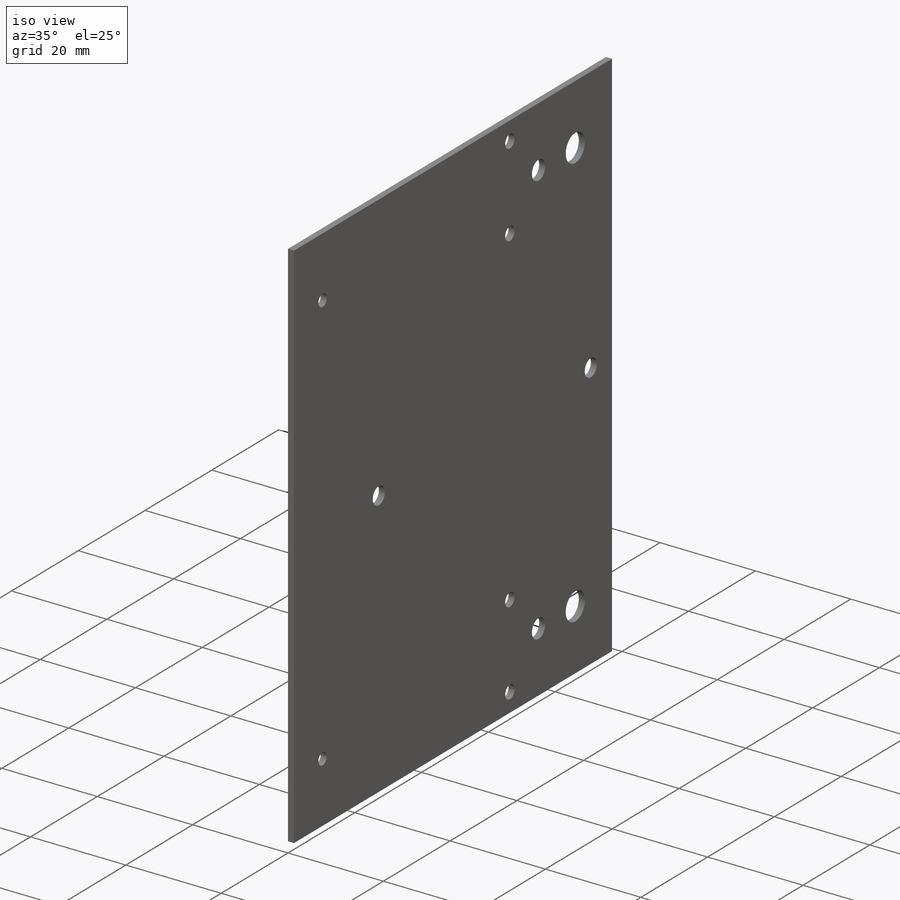
[diagram: iso view]
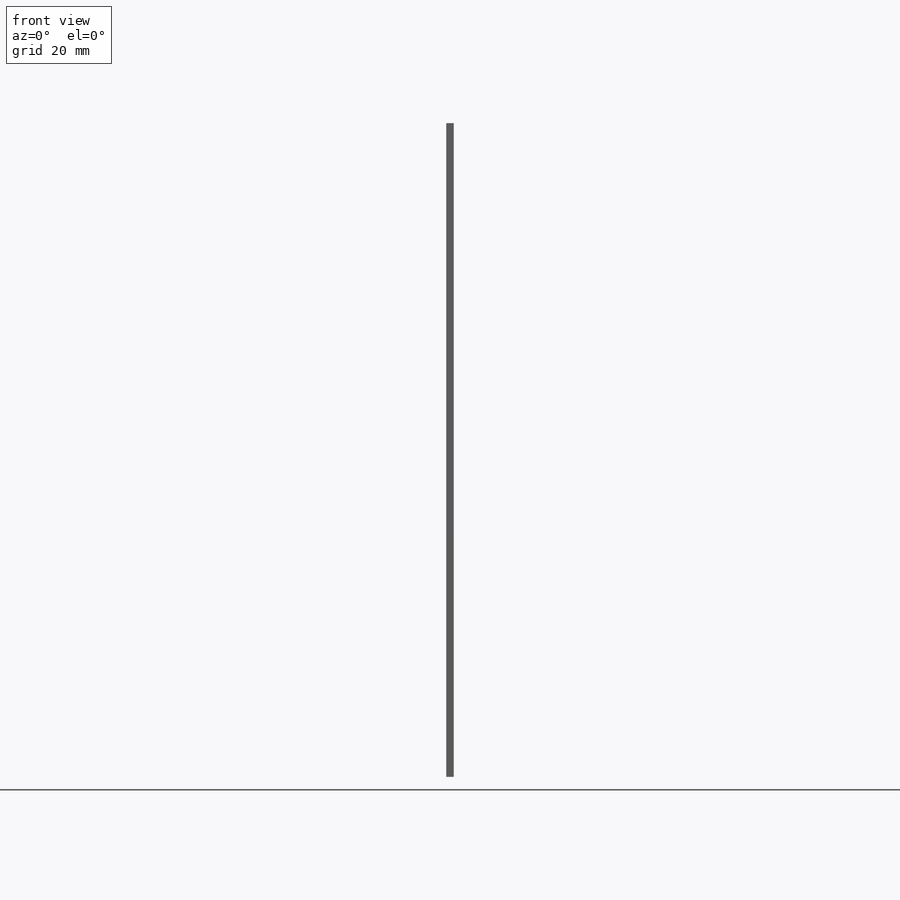
[diagram: front view]
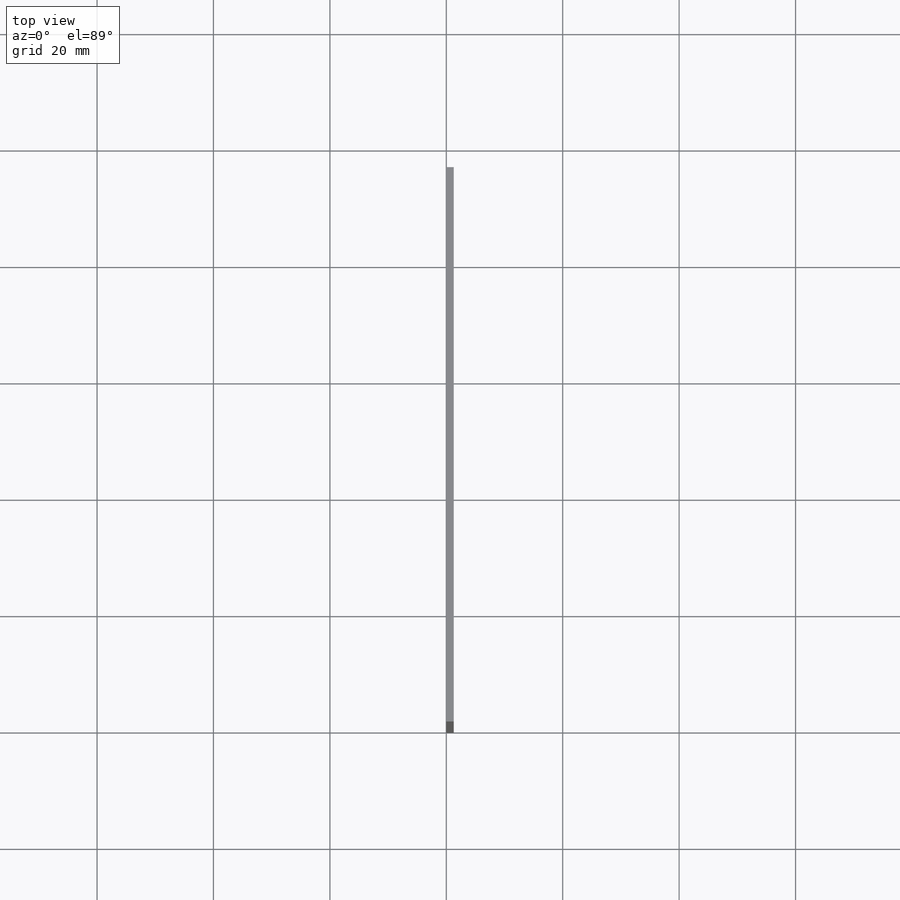
[diagram: top view]
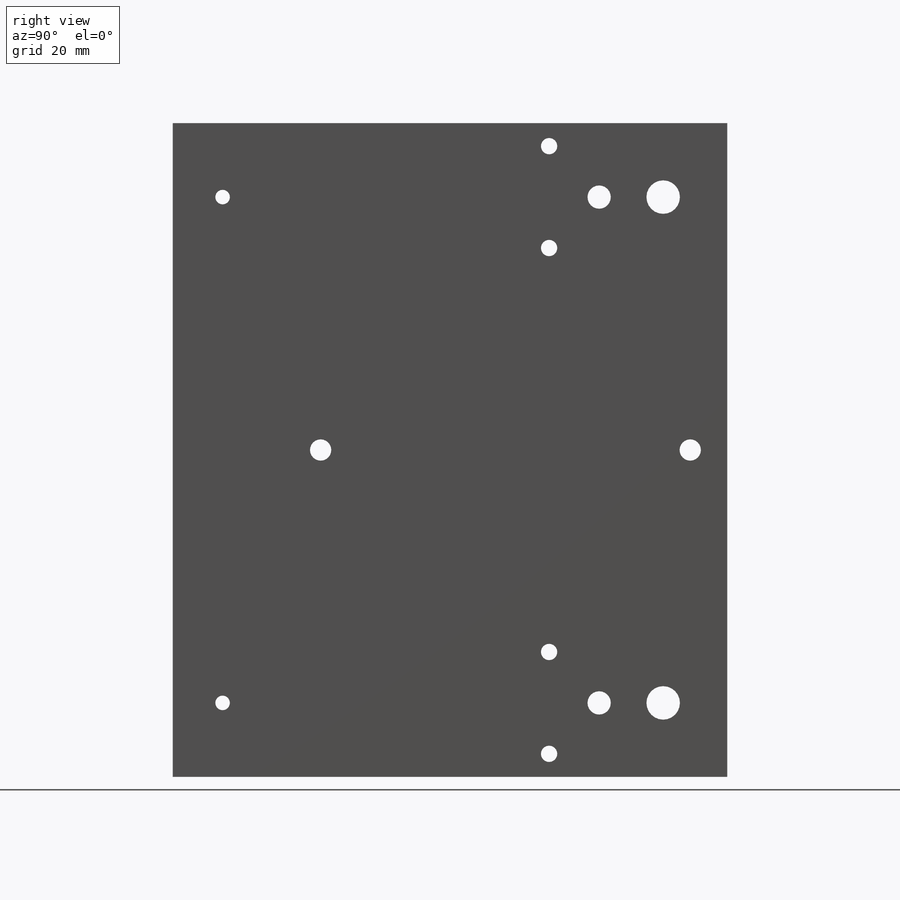
[diagram: right view]
SOLIDWORKS PART (.sldprt)
format: sldprt  version: not decoded by parser v0  size: 424,448 bytes
history: native  units: mm
features: sketch x4, material x1, extrude x1, cut_extrude x1, sheet_metal_op x1 + 2 further entries (+11 scaffold rows collapsed; 1 parser-record rows omitted)
feature tree (22):
  scaffold x11  (default folders/planes/origin — collapsed)
  material  "Material <not specified>"
  sketch  "Sketch1"  dims[c1.D5=2.8mm c1.D6=2.8mm c1.D7=4.0mm c1.D8=5.754mm c1.D15=~2.49936mm c1.D2=5.754mm c1.D1=82.55mm c2.D2=25.4mm c2.D3=31.75mm c2.D4=12.7mm c2.D9=11.0mm c2.D10=22.0mm c2.D11=30.6mm c2.D12=17.5mm c2.D13=8.75mm c2.D14=75.692mm c3.D2=31.75mm c3.D16=31.75mm c4.D2=12.7mm c4.D4=95.25mm c4.D16=31.75mm]
  extrude  "Boss-Extrude1"  Depth=54.61mm
  sketch  "Sketch3"  dims[D1=3.6576mm D2=3.6576mm D3=63.5mm D4=6.35mm]
  cut_extrude  "Cut-Extrude2"  Depth=2.54mm
  sheet_metal_op  "Sheet-Metal1"  SharpBend2=0
  "Flat-Pattern1"
  sketch  "Bend-Lines1"
  sketch  "Bounding-Box1"
  "Flatten-<SharpBend2>1"
  parser-record x1  (decoder bookkeeping rows leaked as tree rows — omitted from the tree; the rows remain in map.json)
decode coverage: 5 of 7 modeling features carry decoded parameters; 2 rows unclassified (native names shown)
note: ~ marks probable driven/reference dimensions
note: suppression state not decoded; provenance and decode notes live in map.json
